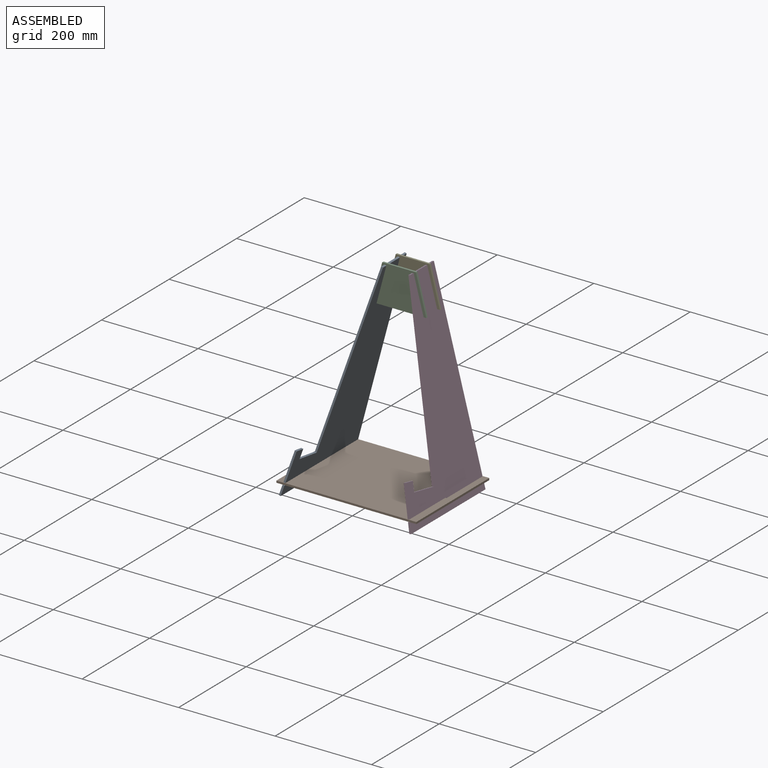
[diagram: assembled view]
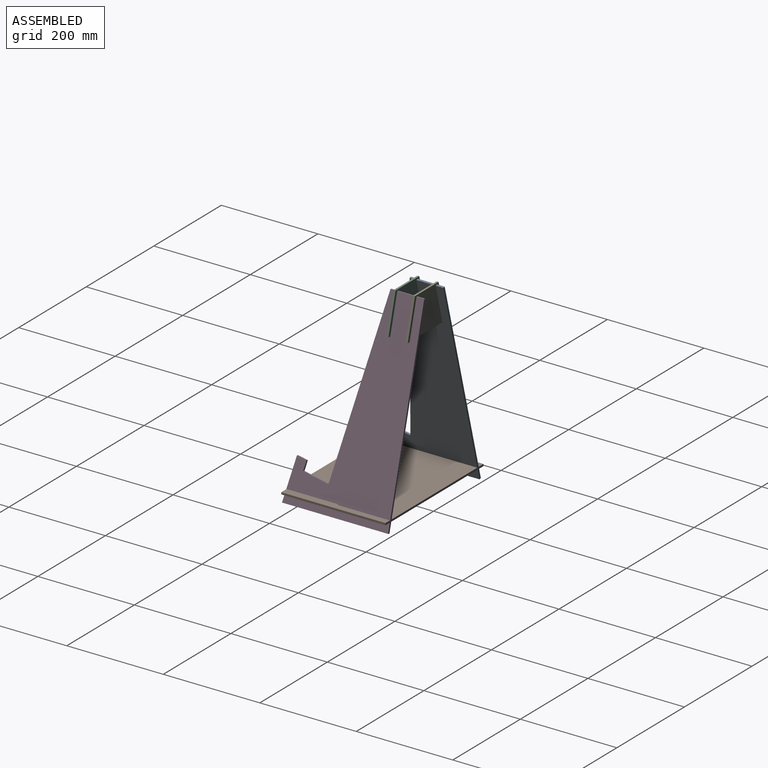
[diagram: assembled view, second angle]
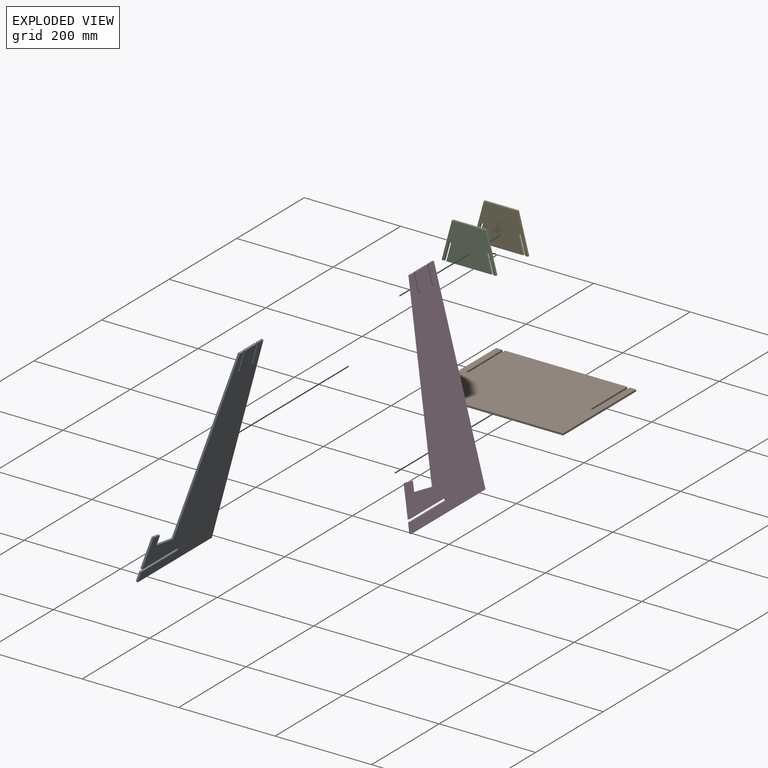
[diagram: exploded view]
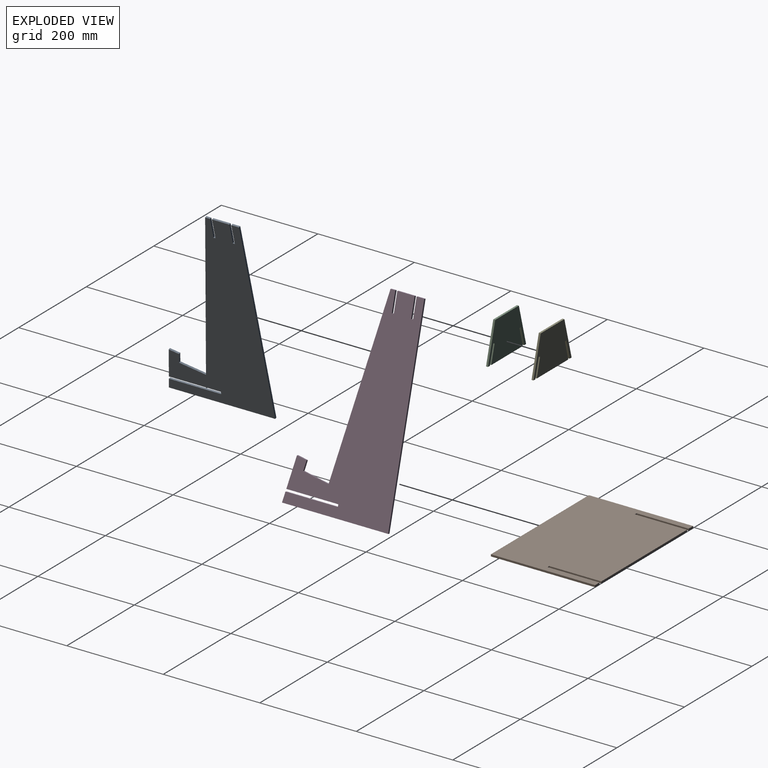
[diagram: exploded view, second angle]
ASSEMBLY  parts=5 mates=3
PART A: 22 faces, bbox 220x4x413.5 mm
  f0: plane 36x4mm, normal (0,0,1), area 144mm2, adj f1,f5,f7,f21
  f1: plane 40.59x4mm, normal (1,0,0), area 162.4mm2, adj f0,f2,f5,f7
  f2: plane 4x4mm, normal (0,0,1), area 16mm2, adj f1,f3,f5,f7
  f3: plane 40.59x4mm, normal (-1,0,0), area 162.4mm2, adj f2,f5,f7,f10
  f4: plane 10x4mm, normal (0,0,1), area 40mm2, adj f5,f7,f11,f19
  f5: plane 413.46x220mm, normal (0,-1,0), area 48221.7mm2, adj f0,f1,f2,f3,f4,f6,f8,f9
  f6: plane 20x4mm, normal (-0.98,0,0.17), area 81.2mm2, adj f5,f7,f8,f17
  f7: plane 413.46x220mm, normal (0,1,0), area 48221.7mm2, adj f0,f1,f2,f3,f4,f6,f8,f9
  f8: plane 220x4mm, normal (0,0,-1), area 880mm2, adj f5,f6,f7,f9
  f9: plane 413.46x4mm, normal (1,0,0), area 1653.8mm2, adj f5,f7,f8,f10
  f10: plane 16x4mm, normal (0,0,1), area 64mm2, adj f3,f5,f7,f9
  f11: plane 359.46x63.38mm, normal (-0.98,0,0.17), area 1460mm2, adj f4,f5,f7,f12
  f12: plane 54.16x9.55mm, normal (0.17,0,0.98), area 220mm2, adj f5,f7,f11,f13
  f13: plane 19.7x4mm, normal (0.98,0,-0.17), area 80mm2, adj f5,f7,f12,f14
  f14: plane 20.61x4mm, normal (0.17,0,0.98), area 83.7mm2, adj f5,f7,f13,f15
  f15: plane 61.74x10.89mm, normal (-0.98,0,0.17), area 250.8mm2, adj f5,f7,f14,f18
  f16: plane 5.14x4mm, normal (-1,0,0), area 20.6mm2, adj f5,f7,f17,f18
  f17: plane 108.7x4mm, normal (0,0,1), area 434.8mm2, adj f5,f6,f7,f16
  f18: plane 107.79x4mm, normal (0,0,-1), area 431.2mm2, adj f5,f7,f15,f16
  f19: plane 40.59x4mm, normal (1,0,0), area 162.4mm2, adj f4,f5,f7,f20
  f20: plane 4x4mm, normal (0,0,1), area 16mm2, adj f5,f7,f19,f21
  f21: plane 40.59x4mm, normal (-1,0,0), area 162.4mm2, adj f0,f5,f7,f20
PART B: 14 faces, bbox 290x216x4 mm
  f0: plane 13.07x4mm, normal (0,1,0), area 52.3mm2, adj f1,f3,f4,f11
  f1: plane 290x216mm, normal (0,0,-1), area 61531.4mm2, adj f0,f2,f4,f5,f6,f7,f8,f9
  f2: plane 253.57x4mm, normal (0,1,0), area 1014.3mm2, adj f1,f3,f8,f12
  f3: plane 290x216mm, normal (0,0,1), area 61531.4mm2, adj f0,f2,f4,f5,f6,f7,f8,f9
  f4: plane 216x4mm, normal (-1,0,0), area 864mm2, adj f0,f1,f3,f6
  f5: plane 216x4mm, normal (1,0,0), area 864mm2, adj f1,f3,f6,f7
  f6: plane 290x4mm, normal (0,-1,0), area 1160mm2, adj f1,f3,f4,f5
  f7: plane 13.07x4mm, normal (0,1,0), area 52.3mm2, adj f1,f3,f5,f10
  f8: plane 107.87x4mm, normal (1,0,0), area 431.5mm2, adj f1,f2,f3,f9
  f9: plane 5.14x4mm, normal (-0.02,1,0), area 20.6mm2, adj f1,f3,f8,f10
  f10: plane 107.75x4mm, normal (-1,0,0), area 431mm2, adj f1,f3,f7,f9
  f11: plane 107.75x4mm, normal (1,0,0), area 431mm2, adj f0,f1,f3,f13
  f12: plane 107.87x4mm, normal (-1,0,0), area 431.5mm2, adj f1,f2,f3,f13
  f13: plane 5.14x4mm, normal (0.02,1,0), area 20.6mm2, adj f1,f3,f11,f12
PART C: 14 faces, bbox 112.9x4x80 mm
  f0: plane 93.46x4mm, normal (0,0,-1), area 373.8mm2, adj f2,f7,f10,f12
  f1: plane 5.56x4mm, normal (0,0,-1), area 22.2mm2, adj f2,f3,f7,f9
  f2: plane 112.87x80mm, normal (0,1,0), area 7004.4mm2, adj f0,f1,f3,f4,f5,f6,f8,f9
  f3: plane 80x21.44mm, normal (0.97,0,0.26), area 331.3mm2, adj f1,f2,f4,f7
  f4: plane 70x4mm, normal (0,0,1), area 280mm2, adj f2,f3,f5,f7
  f5: plane 80x21.44mm, normal (-0.97,0,0.26), area 331.3mm2, adj f2,f4,f6,f7
  f6: plane 5.57x4mm, normal (0,0,-1), area 22.3mm2, adj f2,f5,f7,f13
  f7: plane 112.87x80mm, normal (0,-1,0), area 7004.4mm2, adj f0,f1,f3,f4,f5,f6,f8,f9
  f8: plane 4x3.86mm, normal (0.26,0,-0.97), area 16mm2, adj f2,f7,f9,f10
  f9: plane 38x10.18mm, normal (-0.97,0,-0.26), area 157.4mm2, adj f1,f2,f7,f8
  f10: plane 36.96x9.9mm, normal (0.97,0,0.26), area 153.1mm2, adj f0,f2,f7,f8
  f11: plane 4x3.86mm, normal (-0.26,0,-0.97), area 16mm2, adj f2,f7,f12,f13
  f12: plane 36.96x9.9mm, normal (-0.97,0,0.26), area 153.1mm2, adj f0,f2,f7,f11
  f13: plane 38x10.18mm, normal (0.97,0,-0.26), area 157.4mm2, adj f2,f6,f7,f11
PART D: same geometry as A
PART E: same geometry as C
PLACE A rot(axis=(0.13,0.13,0.98),91deg) t=(-75.24,-561.47,244.03)mm
PLACE B t=(68.42,0.75,254.41)mm fixed
PLACE C t=(66.28,-55.25,239.9)mm
PLACE D rot(axis=(-0.13,-0.13,0.98),91deg) t=(67.9,-561.47,243)mm
PLACE E t=(66.28,-15.25,239.9)mm
MATE fastened A.f9 <-> B.f0  axis (0,1,0) through (-133.74,0.75,25.7)mm
MATE fastened C.f7 <-> D.f19  axis (0,-1,0) through (54.76,-59.25,328.47)mm
MATE fastened D.f9 <-> B.f7  axis (0,1,0) through (130.26,0.75,25.7)mm
